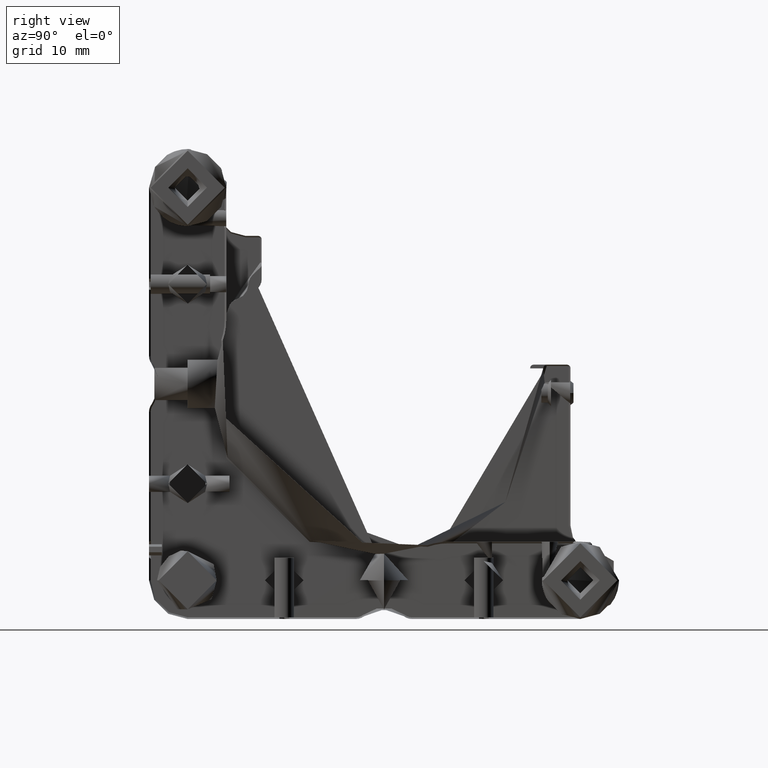
[diagram: clean part render]
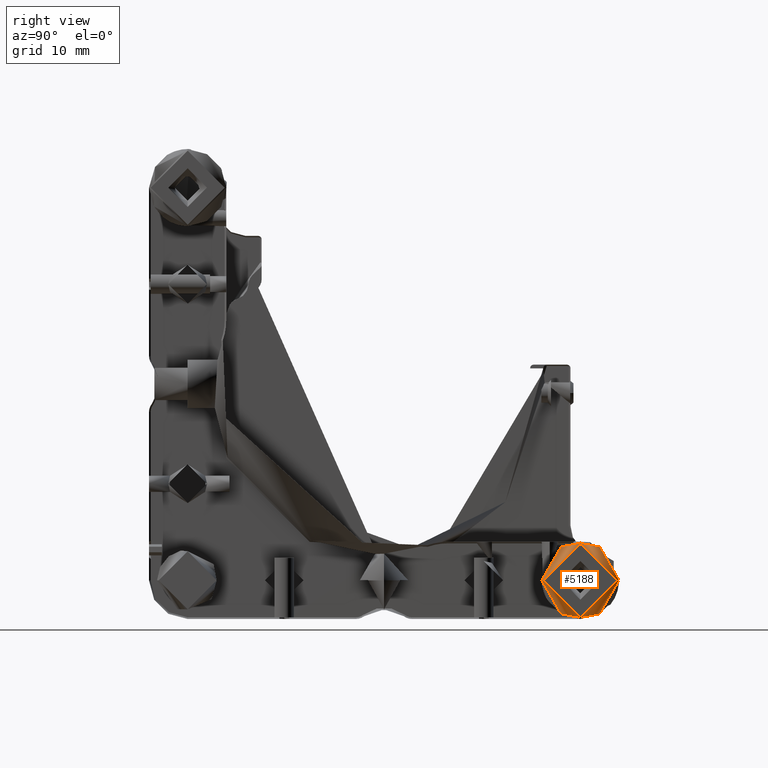
[diagram: same view with one face highlighted and labeled with its STEP entity id]
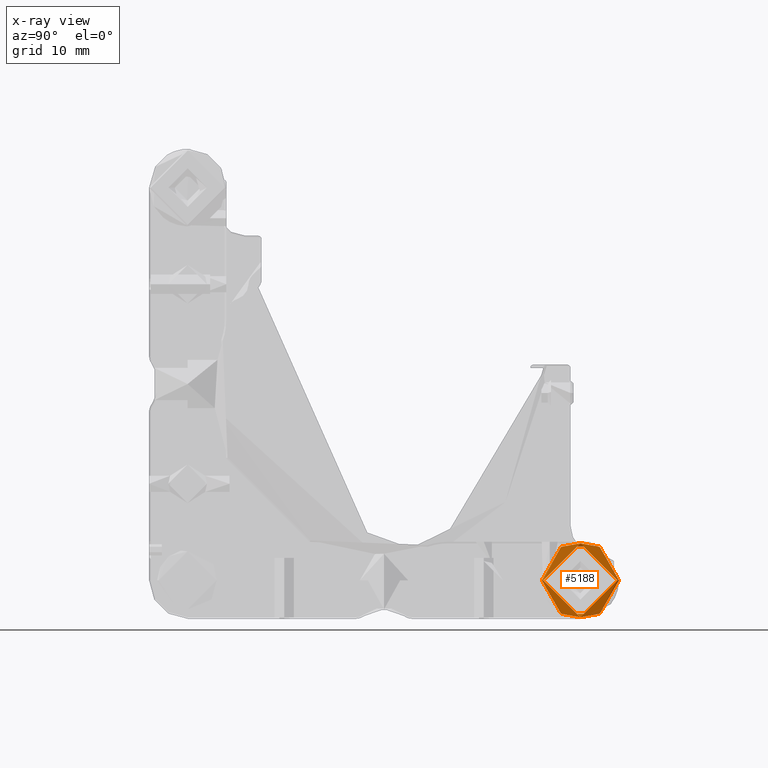
[diagram: x-ray of the same camera — body ghosted, the highlighted face saturated]
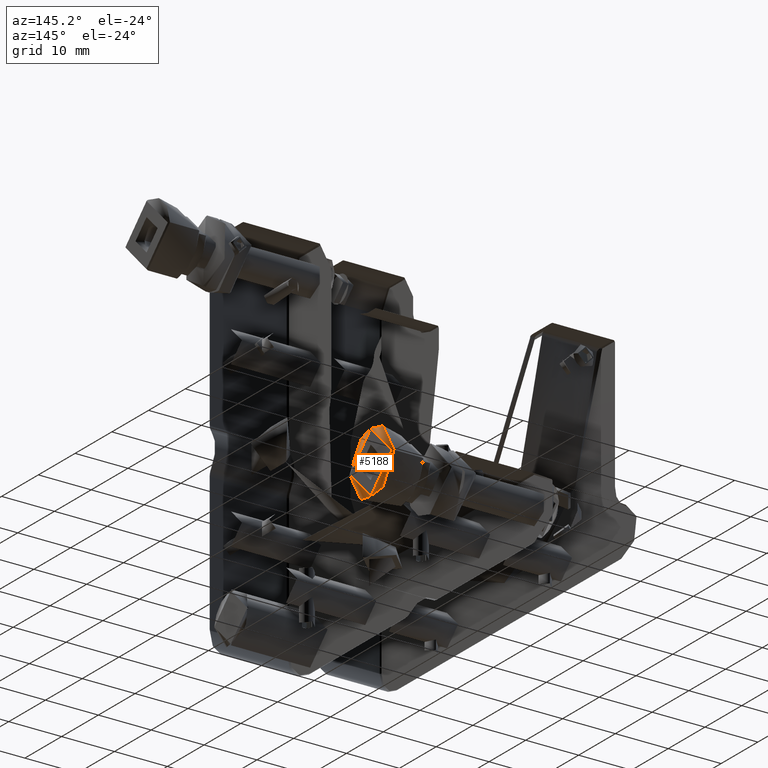
[diagram: same view with one face highlighted and labeled with its STEP entity id]
A machine part, right view. The second image highlights one B-rep face of the part: STEP entity #5188.
The next image is the same camera in x-ray: the body ghosted, the highlighted face saturated — about 0% of this face is hidden behind the body in this view.
A second angle (auxiliary view) of the same face is appended — the face is thin or edge-on in the first view.
In plain terms, the highlighted conical surface has half-angle 45 deg.
Its self-contained STEP definition (entity closure, byte-faithful):
#216 = DIRECTION ( 'NONE',  ( -6.033820786027636238E-16, -1.000000000000000000, 0.000000000000000000 ) ) ;
#1425 = EDGE_LOOP ( 'NONE', ( #10466 ) ) ;
#1682 = CARTESIAN_POINT ( 'NONE',  ( 30.20623492657769305, 29.18292862304670976, 21.50000000000004619 ) ) ;
#2262 = AXIS2_PLACEMENT_3D ( 'NONE', #10040, #13315, #216 ) ;
#2269 = CARTESIAN_POINT ( 'NONE',  ( 30.45623492658932818, 23.43292862306705615, 21.50000000000004619 ) ) ;
#2917 = DIRECTION ( 'NONE',  ( -1.000000000000000000, 4.144316466091843552E-16, -4.032483699422017320E-16 ) ) ;
#3665 = AXIS2_PLACEMENT_3D ( 'NONE', #1682, #6988, #8146 ) ;
#4291 = DIRECTION ( 'NONE',  ( -5.782411586632715406E-16, -1.000000000000000000, 0.000000000000000000 ) ) ;
#5188 = ADVANCED_FACE ( 'NONE', ( #12856, #11972 ), #14278, .T. ) ;
#5537 = CARTESIAN_POINT ( 'NONE',  ( 30.20623492657769660, 35.18292862304671331, 21.50000000000004619 ) ) ;
#6678 = CIRCLE ( 'NONE', #3665, 6.000000000000005329 ) ;
#6988 = DIRECTION ( 'NONE',  ( -1.000000000000000000, 6.388662974027445357E-16, -5.668521952577551044E-16 ) ) ;
#7336 = AXIS2_PLACEMENT_3D ( 'NONE', #8647, #2917, #4291 ) ;
#7645 = VERTEX_POINT ( 'NONE', #2269 ) ;
#7698 = ORIENTED_EDGE ( 'NONE', *, *, #10019, .T. ) ;
#8146 = DIRECTION ( 'NONE',  ( 5.782411586589351722E-16, 1.000000000000000000, 0.000000000000000000 ) ) ;
#8525 = CIRCLE ( 'NONE', #2262, 5.749999999979653609 ) ;
#8647 = CARTESIAN_POINT ( 'NONE',  ( 30.20623492659524345, 29.18292862304670976, 21.50000000000004619 ) ) ;
#9430 = EDGE_LOOP ( 'NONE', ( #7698 ) ) ;
#9885 = EDGE_CURVE ( 'NONE', #13151, #13151, #6678, .T. ) ;
#10019 = EDGE_CURVE ( 'NONE', #7645, #7645, #8525, .T. ) ;
#10040 = CARTESIAN_POINT ( 'NONE',  ( 30.45623492658933174, 29.18292862304670976, 21.50000000000004619 ) ) ;
#10466 = ORIENTED_EDGE ( 'NONE', *, *, #9885, .F. ) ;
#11972 = FACE_BOUND ( 'NONE', #9430, .T. ) ;
#12856 = FACE_OUTER_BOUND ( 'NONE', #1425, .T. ) ;
#13151 = VERTEX_POINT ( 'NONE', #5537 ) ;
#13315 = DIRECTION ( 'NONE',  ( -1.000000000000000000, 4.144316466091843552E-16, -4.032483699422017320E-16 ) ) ;
#14278 = CONICAL_SURFACE ( 'NONE', #7336, 5.999999999955010210, 0.7853981633599904644 ) ;